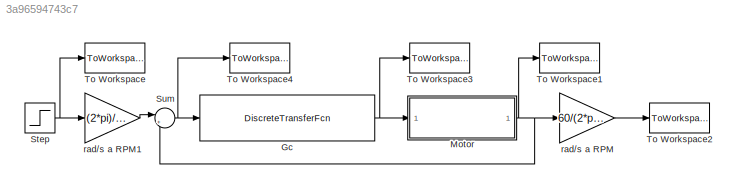
MODEL slx_3a96594743c7
KIND model
CONFIG AbsTol = auto
CONFIG EnableMultiTasking = off
CONFIG FixedStep = auto
CONFIG MaxStep = auto
CONFIG MinStep = auto
CONFIG RelTol = 1e-3
CONFIG SampleTimeConstraint = Unconstrained
CONFIG Solver = VariableStepAuto
CONFIG SolverName = VariableStepAuto
CONFIG StartTime = 0.0
CONFIG StopTime = .3
BLOCK [DiscreteTransferFcn] Gc
  Denominator = [1 -p1 -p2]
  InputPortMap = u0
  Numerator = [q0 q1 q2]
  Ports = [1, 1]
  SampleTime = T0
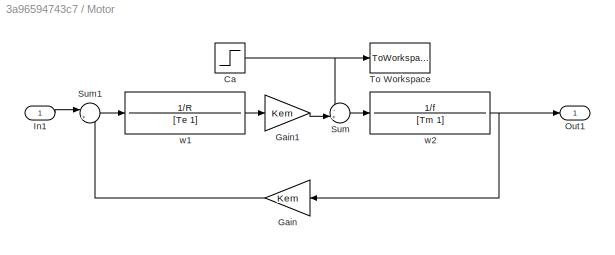
BLOCK [SubSystem] Motor
  Ports = [1, 1]
  RequestExecContextInheritance = off
  Variant = off
BLOCK [Step] Motor/Ca
  After = 2
  SampleTime = 0
  Time = Tcarga
BLOCK [Gain] Motor/Gain
  Gain = Kem
  OutDataTypeStr = Inherit: Inherit via internal rule
  ParamDataTypeStr = Inherit: Inherit via internal rule
  SaturateOnIntegerOverflow = off
BLOCK [Gain] Motor/Gain1
  Gain = Kem
  OutDataTypeStr = Inherit: Inherit via internal rule
  ParamDataTypeStr = Inherit: Inherit via internal rule
  SaturateOnIntegerOverflow = off
BLOCK [Inport] Motor/In1
  IconDisplay = Port number
BLOCK [Outport] Motor/Out1
  IconDisplay = Port number
BLOCK [Sum] Motor/Sum
  IconShape = round
  InputSameDT = off
  Inputs = -+|
  OutDataTypeStr = Inherit: Inherit via internal rule
  Ports = [2, 1]
  SaturateOnIntegerOverflow = off
BLOCK [Sum] Motor/Sum1
  IconShape = round
  InputSameDT = off
  Inputs = |+-
  OutDataTypeStr = Inherit: Inherit via internal rule
  Ports = [2, 1]
  SaturateOnIntegerOverflow = off
BLOCK [ToWorkspace] Motor/To Workspace
  FixptAsFi = on
  MaxDataPoints = inf
  Ports = [1]
  SampleTime = -1
  Save2DSignal = 3-D array (concatenate along third dimension)
  SaveFormat = Timeseries
  VariableName = Perturbacion
BLOCK [TransferFcn] Motor/w1
  Denominator = [Te 1]
  Numerator = 1/R
BLOCK [TransferFcn] Motor/w2
  Denominator = [Tm 1]
  Numerator = 1/f
BLOCK [Step] Step
  After = 1000
  SampleTime = 0
  Time = 0
BLOCK [Sum] Sum
  IconShape = round
  InputSameDT = off
  Inputs = |+-
  OutDataTypeStr = Inherit: Inherit via internal rule
  Ports = [2, 1]
  SaturateOnIntegerOverflow = off
BLOCK [ToWorkspace] To Workspace
  FixptAsFi = on
  MaxDataPoints = inf
  Ports = [1]
  SampleTime = -1
  Save2DSignal = 3-D array (concatenate along third dimension)
  SaveFormat = Timeseries
  VariableName = Entrada
BLOCK [ToWorkspace] To Workspace1
  FixptAsFi = on
  MaxDataPoints = inf
  Ports = [1]
  SampleTime = -1
  Save2DSignal = 3-D array (concatenate along third dimension)
  SaveFormat = Timeseries
  VariableName = VelocidadRad
BLOCK [ToWorkspace] To Workspace2
  FixptAsFi = on
  MaxDataPoints = inf
  Ports = [1]
  SampleTime = -1
  Save2DSignal = 3-D array (concatenate along third dimension)
  SaveFormat = Timeseries
  VariableName = VelocidadRPM
BLOCK [ToWorkspace] To Workspace3
  FixptAsFi = on
  MaxDataPoints = inf
  Ports = [1]
  SampleTime = -1
  Save2DSignal = 3-D array (concatenate along third dimension)
  SaveFormat = Timeseries
  VariableName = AccionControl
BLOCK [ToWorkspace] To Workspace4
  FixptAsFi = on
  MaxDataPoints = inf
  Ports = [1]
  SampleTime = -1
  Save2DSignal = 3-D array (concatenate along third dimension)
  SaveFormat = Timeseries
  VariableName = Error
BLOCK [Gain] rad//s a RPM
  Gain = 60/(2*pi)
  OutDataTypeStr = Inherit: Inherit via internal rule
  ParamDataTypeStr = Inherit: Inherit via internal rule
  SaturateOnIntegerOverflow = off
BLOCK [Gain] rad//s a RPM1
  Gain = (2*pi)/60
  OutDataTypeStr = Inherit: Inherit via internal rule
  ParamDataTypeStr = Inherit: Inherit via internal rule
  SaturateOnIntegerOverflow = off
NET Gc:1 -> Motor:1, To Workspace3:1
NET Motor/Ca:1 -> Motor/Sum:1, Motor/To Workspace:1
LINE Motor/Gain1:1 -> Motor/Sum:2
LINE Motor/Gain:1 -> Motor/Sum1:2
LINE Motor/In1:1 -> Motor/Sum1:1
LINE Motor/Sum1:1 -> Motor/w1:1
LINE Motor/Sum:1 -> Motor/w2:1
LINE Motor/w1:1 -> Motor/Gain1:1
NET Motor/w2:1 -> Motor/Gain:1, Motor/Out1:1
NET Motor:1 -> Sum:2, To Workspace1:1, rad//s a RPM:1
NET Step:1 -> To Workspace:1, rad//s a RPM1:1
NET Sum:1 -> Gc:1, To Workspace4:1
LINE rad//s a RPM1:1 -> Sum:1
LINE rad//s a RPM:1 -> To Workspace2:1
note: NET lines group one-source signal fan-out (src -> all destinations, sorted); 1:1 wires keep LINE
